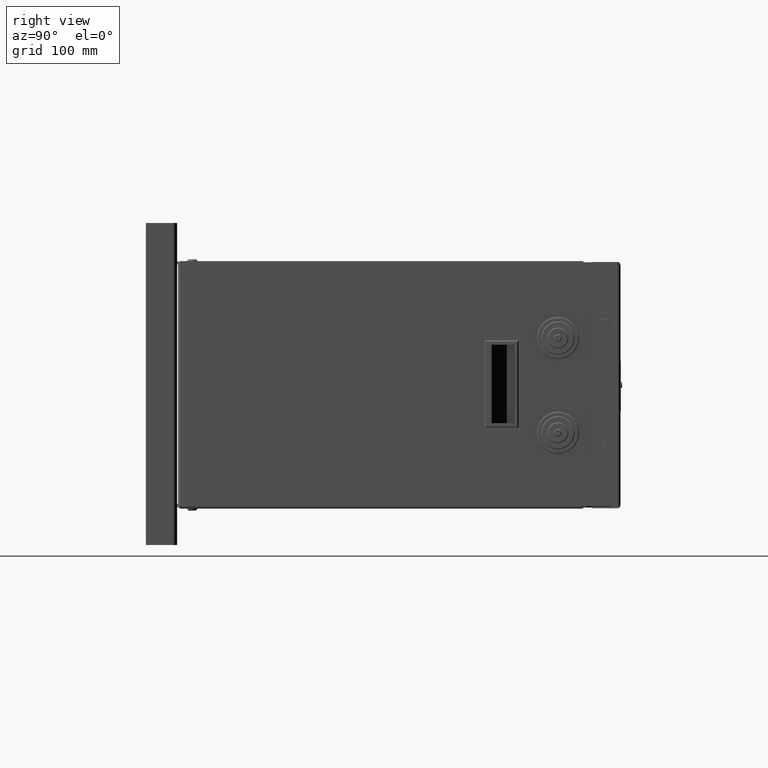
[diagram: clean part render]
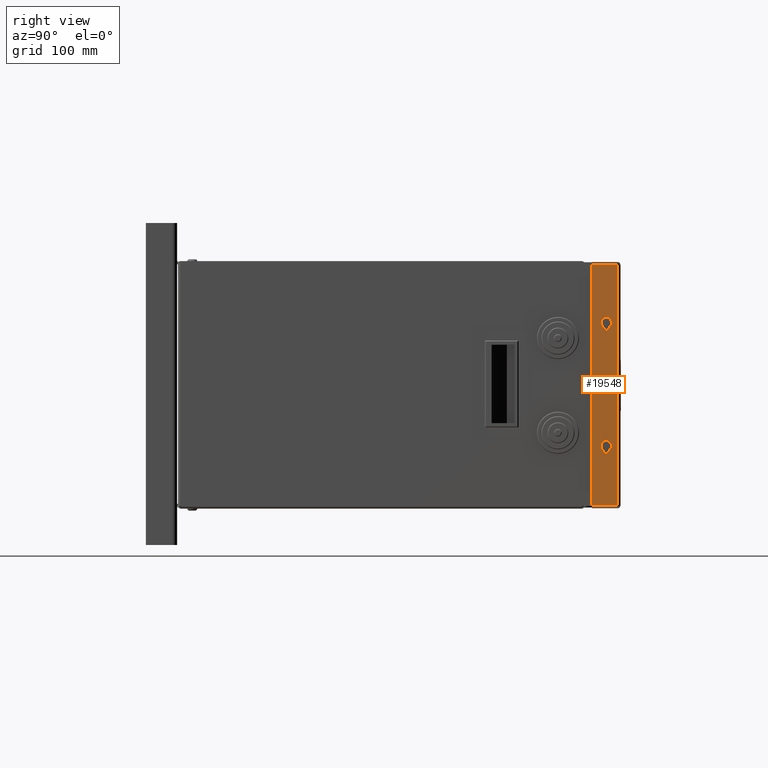
[diagram: same view with one face highlighted and labeled with its STEP entity id]
A machine part, right view. The second image highlights one B-rep face of the part: STEP entity #19548.
In plain terms, the highlighted planar face has unit normal (1, 0, -0).
Its self-contained STEP definition (entity closure, byte-faithful):
#1125=PLANE('',#21145);
#2425=LINE('',#30706,#4143);
#2429=LINE('',#30718,#4147);
#2433=LINE('',#30730,#4151);
#2437=LINE('',#30742,#4155);
#2482=LINE('',#30853,#4200);
#2490=LINE('',#30874,#4208);
#2493=LINE('',#30878,#4211);
#2497=LINE('',#30889,#4215);
#2499=LINE('',#30893,#4217);
#2501=LINE('',#30896,#4219);
#4143=VECTOR('',#24904,10.);
#4147=VECTOR('',#24916,10.);
#4151=VECTOR('',#24928,10.);
#4155=VECTOR('',#24940,10.);
#4200=VECTOR('',#25053,10.);
#4208=VECTOR('',#25069,10.);
#4211=VECTOR('',#25074,10.);
#4215=VECTOR('',#25088,10.);
#4217=VECTOR('',#25092,10.);
#4219=VECTOR('',#25096,10.);
#5045=FACE_BOUND('',#7161,.T.);
#5046=FACE_BOUND('',#7162,.T.);
#5900=FACE_OUTER_BOUND('',#7160,.T.);
#7160=EDGE_LOOP('',(#15903,#15904,#15905,#15906,#15907,#15908));
#7161=EDGE_LOOP('',(#15909,#15910,#15911,#15912));
#7162=EDGE_LOOP('',(#15913,#15914,#15915,#15916));
#8490=CIRCLE('',#21089,3.5);
#8492=CIRCLE('',#21093,3.5);
#8494=CIRCLE('',#21097,3.5);
#8496=CIRCLE('',#21101,3.5);
#9811=VERTEX_POINT('',#30703);
#9812=VERTEX_POINT('',#30705);
#9814=VERTEX_POINT('',#30711);
#9816=VERTEX_POINT('',#30717);
#9819=VERTEX_POINT('',#30727);
#9820=VERTEX_POINT('',#30729);
#9822=VERTEX_POINT('',#30735);
#9824=VERTEX_POINT('',#30741);
#9855=VERTEX_POINT('',#30851);
#9856=VERTEX_POINT('',#30852);
#9864=VERTEX_POINT('',#30872);
#9865=VERTEX_POINT('',#30873);
#9867=VERTEX_POINT('',#30888);
#9868=VERTEX_POINT('',#30892);
#12057=EDGE_CURVE('',#9812,#9811,#2425,.T.);
#12060=EDGE_CURVE('',#9814,#9812,#8490,.T.);
#12063=EDGE_CURVE('',#9816,#9814,#2429,.T.);
#12066=EDGE_CURVE('',#9811,#9816,#8492,.T.);
#12069=EDGE_CURVE('',#9820,#9819,#2433,.T.);
#12072=EDGE_CURVE('',#9822,#9820,#8494,.T.);
#12075=EDGE_CURVE('',#9824,#9822,#2437,.T.);
#12078=EDGE_CURVE('',#9819,#9824,#8496,.T.);
#12130=EDGE_CURVE('',#9855,#9856,#2482,.T.);
#12140=EDGE_CURVE('',#9864,#9865,#2490,.T.);
#12143=EDGE_CURVE('',#9865,#9856,#2493,.T.);
#12149=EDGE_CURVE('',#9855,#9867,#2497,.T.);
#12151=EDGE_CURVE('',#9867,#9868,#2499,.T.);
#12153=EDGE_CURVE('',#9868,#9864,#2501,.T.);
#15903=ORIENTED_EDGE('',*,*,#12130,.T.);
#15904=ORIENTED_EDGE('',*,*,#12143,.F.);
#15905=ORIENTED_EDGE('',*,*,#12140,.F.);
#15906=ORIENTED_EDGE('',*,*,#12153,.F.);
#15907=ORIENTED_EDGE('',*,*,#12151,.F.);
#15908=ORIENTED_EDGE('',*,*,#12149,.F.);
#15909=ORIENTED_EDGE('',*,*,#12057,.T.);
#15910=ORIENTED_EDGE('',*,*,#12066,.T.);
#15911=ORIENTED_EDGE('',*,*,#12063,.T.);
#15912=ORIENTED_EDGE('',*,*,#12060,.T.);
#15913=ORIENTED_EDGE('',*,*,#12069,.T.);
#15914=ORIENTED_EDGE('',*,*,#12078,.T.);
#15915=ORIENTED_EDGE('',*,*,#12075,.T.);
#15916=ORIENTED_EDGE('',*,*,#12072,.T.);
#19548=ADVANCED_FACE('',(#5900,#5045,#5046),#1125,.T.);
#21089=AXIS2_PLACEMENT_3D('',#30712,#24910,#24911);
#21093=AXIS2_PLACEMENT_3D('',#30722,#24922,#24923);
#21097=AXIS2_PLACEMENT_3D('',#30736,#24934,#24935);
#21101=AXIS2_PLACEMENT_3D('',#30746,#24946,#24947);
#21145=AXIS2_PLACEMENT_3D('',#30897,#25097,#25098);
#24904=DIRECTION('',(-1.58880499646171E-16,1.0077356481659E-14,-1.));
#24910=DIRECTION('center_axis',(-1.,-8.71345892133871E-15,1.58880499646083E-16));
#24911=DIRECTION('ref_axis',(-8.61752873784097E-15,1.,2.34000327771615E-14));
#24916=DIRECTION('',(1.58880499646171E-16,-1.0077356481659E-14,1.));
#24922=DIRECTION('center_axis',(-1.,-8.71345892133871E-15,1.58880499646083E-16));
#24923=DIRECTION('ref_axis',(8.61752873784094E-15,-1.,4.51414612770016E-15));
#24928=DIRECTION('',(-1.5888049964601E-16,-8.32062506927218E-15,-1.));
#24934=DIRECTION('center_axis',(-1.,-8.71345892133871E-15,1.58880499646083E-16));
#24935=DIRECTION('ref_axis',(8.61752873784094E-15,-1.,9.5894513831295E-15));
#24940=DIRECTION('',(1.5888049964601E-16,8.32062506927218E-15,1.));
#24946=DIRECTION('center_axis',(-1.,-8.71345892133871E-15,1.58880499646083E-16));
#24947=DIRECTION('ref_axis',(-8.61752873784094E-15,1.,-9.58945138312949E-15));
#25053=DIRECTION('',(1.58880499646083E-16,-3.60544240877586E-18,1.));
#25069=DIRECTION('',(-1.10472368636653E-14,1.,3.60544240877762E-18));
#25074=DIRECTION('',(4.200041160982E-16,-2.69680225191256E-16,-1.));
#25088=DIRECTION('',(4.200041160982E-16,-2.69680225191256E-16,-1.));
#25092=DIRECTION('',(1.10472368636653E-14,-1.,-3.60544240877762E-18));
#25096=DIRECTION('',(1.37549569222107E-16,-5.66650302789185E-16,1.));
#25097=DIRECTION('center_axis',(1.,8.71345892133871E-15,-1.58880499646083E-16));
#25098=DIRECTION('ref_axis',(8.71345892133871E-15,-1.,2.6968022519126E-16));
#30703=CARTESIAN_POINT('',(454.146587697541,455.500000000003,-68.1999999999998));
#30705=CARTESIAN_POINT('',(454.146587697541,455.500000000002,-61.1999999999998));
#30706=CARTESIAN_POINT('',(454.146587697541,455.500000000003,-98.9499999999997));
#30711=CARTESIAN_POINT('',(454.146587697541,448.500000000002,-61.1999999999998));
#30712=CARTESIAN_POINT('Origin',(454.146587697541,452.000000000003,-61.1999999999998));
#30717=CARTESIAN_POINT('',(454.146587697541,448.500000000003,-68.1999999999998));
#30718=CARTESIAN_POINT('',(454.146587697541,448.500000000003,-95.4499999999998));
#30722=CARTESIAN_POINT('Origin',(454.146587697541,452.000000000003,-68.1999999999998));
#30727=CARTESIAN_POINT('',(454.146587697541,455.500000000003,-198.2));
#30729=CARTESIAN_POINT('',(454.146587697541,455.500000000003,-191.2));
#30730=CARTESIAN_POINT('',(454.146587697541,455.500000000003,-163.95));
#30735=CARTESIAN_POINT('',(454.146587697541,448.500000000003,-191.2));
#30736=CARTESIAN_POINT('Origin',(454.146587697541,452.000000000003,-191.2));
#30741=CARTESIAN_POINT('',(454.146587697541,448.500000000003,-198.2));
#30742=CARTESIAN_POINT('',(454.146587697541,448.500000000003,-160.45));
#30746=CARTESIAN_POINT('Origin',(454.146587697541,452.000000000003,-198.2));
#30851=CARTESIAN_POINT('',(454.146587697541,464.000000000003,-256.7));
#30852=CARTESIAN_POINT('',(454.146587697541,464.000000000003,-2.69999999999975));
#30853=CARTESIAN_POINT('',(454.146587697541,464.000000000003,-129.7));
#30872=CARTESIAN_POINT('',(454.146587697542,437.000000000003,-2.26066017177954));
#30873=CARTESIAN_POINT('',(454.146587697541,464.000000000003,-2.26066017177955));
#30874=CARTESIAN_POINT('',(454.146587697541,464.000000000003,-2.26066017177954));
#30878=CARTESIAN_POINT('',(454.146587697541,464.000000000003,-2.69999999999975));
#30888=CARTESIAN_POINT('',(454.146587697541,464.000000000003,-257.13933982822));
#30889=CARTESIAN_POINT('',(454.146587697541,464.000000000003,-256.7));
#30892=CARTESIAN_POINT('',(454.146587697542,437.000000000003,-257.13933982822));
#30893=CARTESIAN_POINT('',(454.146587697541,464.000000000003,-257.13933982822));
#30896=CARTESIAN_POINT('',(454.146587697542,437.000000000003,-257.13933982822));
#30897=CARTESIAN_POINT('Origin',(454.146587697541,452.191234679557,-129.7));